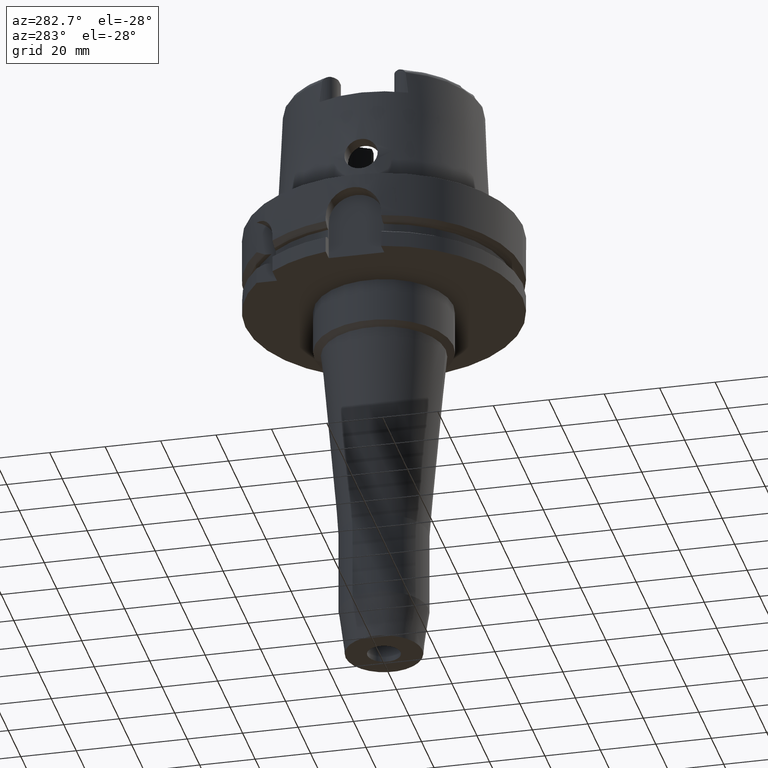
[diagram: clean part render]
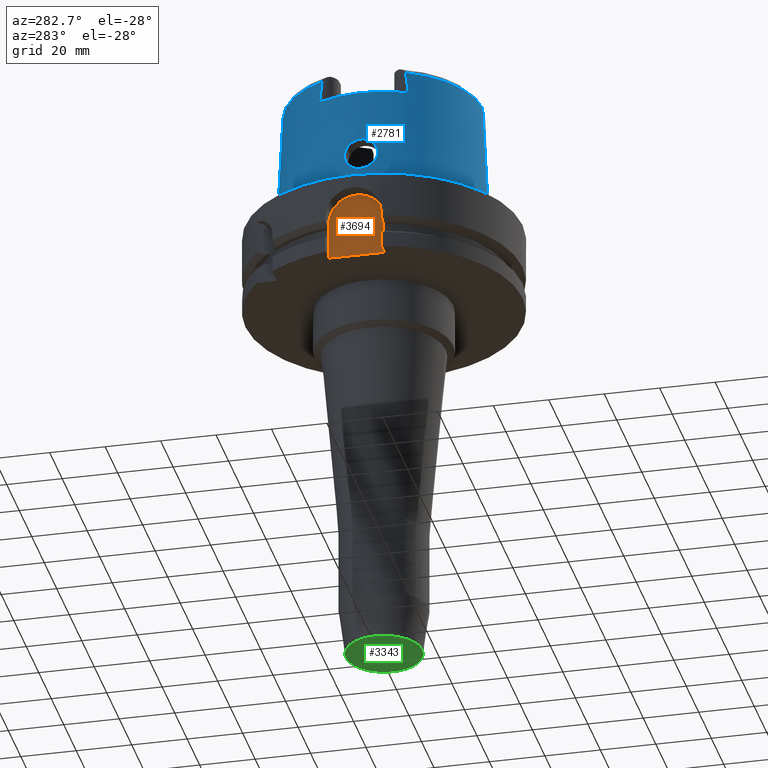
[diagram: same view with three faces highlighted in distinct colors, each labeled with its STEP entity id]
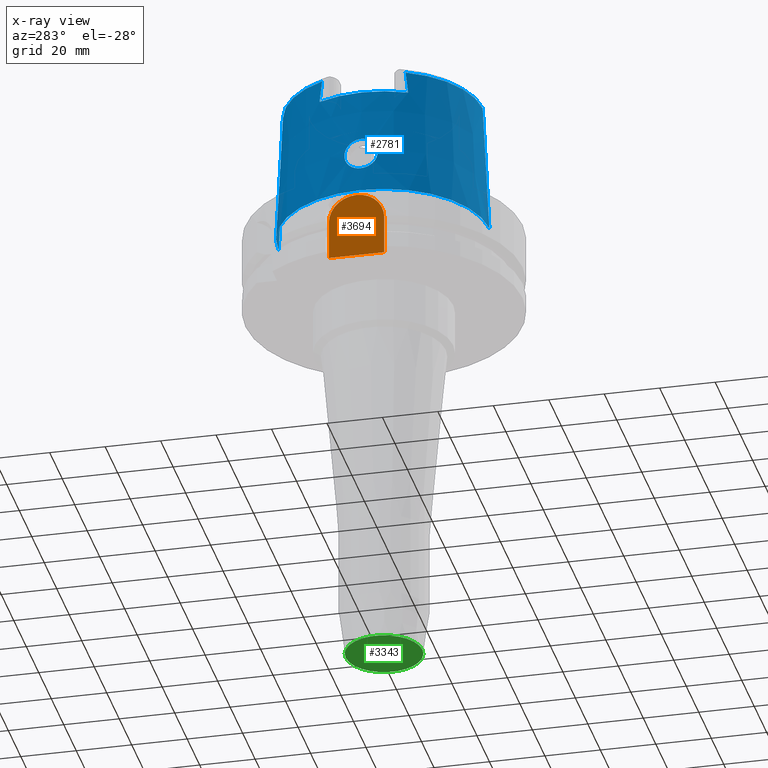
[diagram: x-ray of the same camera — body ghosted, the three highlighted faces saturated]
A machine part, auxiliary view with three faces highlighted in distinct colors.
The next image is the same camera in x-ray (body ghosted, the three faces saturated) — at least one of them is partly hidden behind the body in this view.
Their STEP definitions:

[orange] entity #3694 — the highlighted planar face has unit normal (1, 0, 0).
#1427=DIRECTION('',(0.E0,0.E0,1.E0));
#1428=VECTOR('',#1427,1.4E1);
#1429=CARTESIAN_POINT('',(-4.4E1,-1.E1,-2.9E1));
#1430=LINE('',#1429,#1428);
#1441=DIRECTION('',(0.E0,1.E0,0.E0));
#1442=VECTOR('',#1441,2.E1);
#1443=CARTESIAN_POINT('',(-4.4E1,-1.E1,-2.9E1));
#1444=LINE('',#1443,#1442);
#1448=CARTESIAN_POINT('',(-4.4E1,0.E0,-1.5E1));
#1449=DIRECTION('',(1.E0,0.E0,0.E0));
#1450=DIRECTION('',(0.E0,1.E0,0.E0));
#1451=AXIS2_PLACEMENT_3D('',#1448,#1449,#1450);
#1456=CARTESIAN_POINT('',(-4.4E1,0.E0,-1.5E1));
#1457=DIRECTION('',(1.E0,0.E0,0.E0));
#1458=DIRECTION('',(0.E0,0.E0,1.E0));
#1459=AXIS2_PLACEMENT_3D('',#1456,#1457,#1458);
#1478=DIRECTION('',(0.E0,0.E0,-1.E0));
#1479=VECTOR('',#1478,1.4E1);
#1480=CARTESIAN_POINT('',(-4.4E1,1.E1,-1.5E1));
#1481=LINE('',#1480,#1479);
#2437=CARTESIAN_POINT('',(-4.4E1,1.E1,-2.9E1));
#2438=VERTEX_POINT('',#2437);
#2439=CARTESIAN_POINT('',(-4.4E1,-1.E1,-2.9E1));
#2440=VERTEX_POINT('',#2439);
#2483=CARTESIAN_POINT('',(-4.4E1,-1.E1,-1.5E1));
#2484=VERTEX_POINT('',#2483);
#2496=CARTESIAN_POINT('',(-4.4E1,1.E1,-1.5E1));
#2497=VERTEX_POINT('',#2496);
#2498=CARTESIAN_POINT('',(-4.4E1,0.E0,-5.E0));
#2499=VERTEX_POINT('',#2498);
#3679=CARTESIAN_POINT('',(-4.4E1,0.E0,0.E0));
#3680=DIRECTION('',(1.E0,0.E0,0.E0));
#3681=DIRECTION('',(0.E0,0.E0,1.E0));
#3682=AXIS2_PLACEMENT_3D('',#3679,#3680,#3681);
#3683=PLANE('',#3682);
#3684=ORIENTED_EDGE('',*,*,#3497,.T.);
#3686=ORIENTED_EDGE('',*,*,#3685,.F.);
#3688=ORIENTED_EDGE('',*,*,#3687,.T.);
#3690=ORIENTED_EDGE('',*,*,#3689,.T.);
#3691=ORIENTED_EDGE('',*,*,#3659,.F.);
#3692=EDGE_LOOP('',(#3684,#3686,#3688,#3690,#3691));
#3693=FACE_OUTER_BOUND('',#3692,.F.);
#1452=CIRCLE('',#1451,1.E1);
#1460=CIRCLE('',#1459,1.E1);
#3497=EDGE_CURVE('',#2440,#2438,#1444,.T.);
#3659=EDGE_CURVE('',#2440,#2484,#1430,.T.);
#3685=EDGE_CURVE('',#2497,#2438,#1481,.T.);
#3687=EDGE_CURVE('',#2497,#2499,#1452,.T.);
#3689=EDGE_CURVE('',#2499,#2484,#1460,.T.);
#3694=ADVANCED_FACE('',(#3693),#3683,.F.);

[blue] entity #2781 — the highlighted conical surface has half-angle 2.862 deg.
#130=CARTESIAN_POINT('',(0.E0,0.E0,4.E1));
#131=DIRECTION('',(0.E0,0.E0,-1.E0));
#132=DIRECTION('',(-8.958345712660E-1,-4.443876921391E-1,0.E0));
#133=AXIS2_PLACEMENT_3D('',#130,#131,#132);
#221=CARTESIAN_POINT('',(-3.224999491821E1,-1.506448480698E1,4.809973263365E1));
#281=CARTESIAN_POINT('',(0.E0,0.E0,4.809987853799E1));
#282=DIRECTION('',(0.E0,0.E0,-1.E0));
#283=DIRECTION('',(0.E0,-1.E0,0.E0));
#284=AXIS2_PLACEMENT_3D('',#281,#282,#283);
#289=CARTESIAN_POINT('',(-3.224999876012E1,-1.599794043148E1,4.E1));
#290=CARTESIAN_POINT('',(-3.224999876012E1,-1.589618560063E1,4.090434232027E1));
#291=CARTESIAN_POINT('',(-3.224999990104E1,-1.569149929479E1,4.271014757182E1));
#292=CARTESIAN_POINT('',(-3.225000220619E1,-1.538028254468E1,4.541006270133E1));
#293=CARTESIAN_POINT('',(-3.224999491821E1,-1.517027181500E1,4.720433970237E1));
#294=CARTESIAN_POINT('',(-3.224999491821E1,-1.506448480698E1,4.809973263365E1));
#299=DIRECTION('',(5.154182075151E-5,-4.993927430816E-2,-9.987522546783E-1));
#300=VECTOR('',#299,4.815996991514E1);
#301=CARTESIAN_POINT('',(-2.482252536761E-3,-3.559494263425E1,
4.809987853799E1));
#302=LINE('',#301,#300);
#306=CARTESIAN_POINT('',(-3.225000136841E1,1.506443228419E1,4.809991920288E1));
#307=CARTESIAN_POINT('',(-3.225000136841E1,1.517024628803E1,4.720430023891E1));
#308=CARTESIAN_POINT('',(-3.225000007421E1,1.538032523700E1,4.541024583629E1));
#309=CARTESIAN_POINT('',(-3.224999768767E1,1.569154926884E1,4.271027466994E1));
#310=CARTESIAN_POINT('',(-3.225000534596E1,1.589614940559E1,4.090439636549E1));
#311=CARTESIAN_POINT('',(-3.225000534596E1,1.599791057085E1,4.E1));
#316=CARTESIAN_POINT('',(-3.755000165825E1,1.432651546991E-13,9.E0));
#317=CARTESIAN_POINT('',(-3.755000165825E1,-5.185560787448E-1,9.E0));
#318=CARTESIAN_POINT('',(-3.752119038131E1,-1.556716984308E0,9.135734722668E0));
#319=CARTESIAN_POINT('',(-3.740130554103E1,-3.006802699936E0,9.729109611442E0));
#320=CARTESIAN_POINT('',(-3.722726318975E1,-4.270787324592E0,1.068748216953E1));
#321=CARTESIAN_POINT('',(-3.703605345602E1,-5.245410217770E0,1.194520323917E1));
#322=CARTESIAN_POINT('',(-3.686625967759E1,-5.862506743114E0,1.342477736647E1));
#323=CARTESIAN_POINT('',(-3.675188493320E1,-6.068957740844E0,1.500492021002E1));
#324=CARTESIAN_POINT('',(-3.670699294937E1,-5.861659041703E0,1.657084310318E1));
#325=CARTESIAN_POINT('',(-3.672675900459E1,-5.257535553203E0,1.802994044463E1));
#326=CARTESIAN_POINT('',(-3.679087786361E1,-4.302010649084E0,1.928009624325E1));
#327=CARTESIAN_POINT('',(-3.687048843870E1,-3.045271169507E0,2.025039439541E1));
#328=CARTESIAN_POINT('',(-3.693403423248E1,-1.575202321741E0,2.086150979571E1));
#329=CARTESIAN_POINT('',(-3.694998175923E1,-5.250091625421E-1,2.1E1));
#330=CARTESIAN_POINT('',(-3.694998175923E1,0.E0,2.1E1));
#335=CARTESIAN_POINT('',(-3.694998175923E1,0.E0,2.1E1));
#336=CARTESIAN_POINT('',(-3.694998175923E1,5.232795194722E-1,2.1E1));
#337=CARTESIAN_POINT('',(-3.693412453033E1,1.570860915323E0,2.086225710790E1));
#338=CARTESIAN_POINT('',(-3.687089197851E1,3.037978777085E0,2.025451179145E1));
#339=CARTESIAN_POINT('',(-3.679106406143E1,4.299509589130E0,1.928373303360E1));
#340=CARTESIAN_POINT('',(-3.672648539176E1,5.261375400341E0,1.802478386036E1));
#341=CARTESIAN_POINT('',(-3.670709909781E1,5.863702681437E0,1.656194075938E1));
#342=CARTESIAN_POINT('',(-3.675206984369E1,6.067618997678E0,1.500575580855E1));
#343=CARTESIAN_POINT('',(-3.686472387377E1,5.865809689048E0,1.344398412859E1));
#344=CARTESIAN_POINT('',(-3.703183517814E1,5.262900383117E0,1.197739891739E1));
#345=CARTESIAN_POINT('',(-3.722263417644E1,4.298757024117E0,1.071458147681E1));
#346=CARTESIAN_POINT('',(-3.739912191669E1,3.029436577796E0,9.739991066840E0));
#347=CARTESIAN_POINT('',(-3.752122404034E1,1.560909655737E0,9.135510008534E0));
#348=CARTESIAN_POINT('',(-3.755000165825E1,5.189906359919E-1,9.E0));
#349=CARTESIAN_POINT('',(-3.755000165825E1,1.432651546991E-13,9.E0));
#364=DIRECTION('',(-5.154182075159E-5,4.993927430816E-2,-9.987522546783E-1));
#365=VECTOR('',#364,4.815996991514E1);
#366=CARTESIAN_POINT('',(2.482252536765E-3,3.559494263425E1,4.809987853799E1));
#367=LINE('',#366,#365);
#2011=CARTESIAN_POINT('',(0.E0,0.E0,1.023181539495E-12));
#2012=DIRECTION('',(0.E0,0.E0,1.E0));
#2013=DIRECTION('',(0.E0,1.E0,0.E0));
#2014=AXIS2_PLACEMENT_3D('',#2011,#2012,#2013);
#2202=CARTESIAN_POINT('',(-3.225000136841E1,1.506443228419E1,4.809991920288E1));
#2207=CARTESIAN_POINT('',(0.E0,0.E0,4.809987853799E1));
#2208=DIRECTION('',(0.E0,0.E0,-1.E0));
#2209=DIRECTION('',(-9.060276961631E-1,4.232183996300E-1,0.E0));
#2210=AXIS2_PLACEMENT_3D('',#2207,#2208,#2209);
#2295=CARTESIAN_POINT('',(-3.224999876012E1,-1.599794043148E1,4.E1));
#2296=VERTEX_POINT('',#2295);
#2297=CARTESIAN_POINT('',(-3.224999999999E1,1.599793480981E1,4.E1));
#2298=VERTEX_POINT('',#2297);
#2300=VERTEX_POINT('',#2202);
#2301=CARTESIAN_POINT('',(0.E0,3.559494289391E1,4.809987853799E1));
#2302=VERTEX_POINT('',#2301);
#2306=VERTEX_POINT('',#221);
#2309=CARTESIAN_POINT('',(1.065814103640E-14,-3.559494289391E1,
4.809987853799E1));
#2310=VERTEX_POINT('',#2309);
#2311=CARTESIAN_POINT('',(0.E0,-3.800001658252E1,6.821210263297E-13));
#2312=VERTEX_POINT('',#2311);
#2313=CARTESIAN_POINT('',(0.E0,3.800001658252E1,1.023181539495E-12));
#2314=VERTEX_POINT('',#2313);
#2315=VERTEX_POINT('',#316);
#2316=VERTEX_POINT('',#330);
#2755=CARTESIAN_POINT('',(0.E0,0.E0,2.404993926900E1));
#2756=DIRECTION('',(0.E0,0.E0,-1.E0));
#2757=DIRECTION('',(0.E0,-1.E0,0.E0));
#2758=AXIS2_PLACEMENT_3D('',#2755,#2756,#2757);
#2759=CONICAL_SURFACE('',#2758,3.679747973821E1,2.8625E0);
#2760=ORIENTED_EDGE('',*,*,#2664,.F.);
#2761=ORIENTED_EDGE('',*,*,#2747,.T.);
#2762=ORIENTED_EDGE('',*,*,#2737,.F.);
#2764=ORIENTED_EDGE('',*,*,#2763,.T.);
#2766=ORIENTED_EDGE('',*,*,#2765,.F.);
#2768=ORIENTED_EDGE('',*,*,#2767,.F.);
#2770=ORIENTED_EDGE('',*,*,#2769,.F.);
#2772=ORIENTED_EDGE('',*,*,#2771,.T.);
#2773=EDGE_LOOP('',(#2760,#2761,#2762,#2764,#2766,#2768,#2770,#2772));
#2774=FACE_OUTER_BOUND('',#2773,.F.);
#2776=ORIENTED_EDGE('',*,*,#2775,.T.);
#2778=ORIENTED_EDGE('',*,*,#2777,.T.);
#2779=EDGE_LOOP('',(#2776,#2778));
#2780=FACE_BOUND('',#2779,.F.);
#134=CIRCLE('',#133,3.599995025244E1);
#285=CIRCLE('',#284,3.559494289391E1);
#295=B_SPLINE_CURVE_WITH_KNOTS('',3,(#289,#290,#291,#292,#293,#294),
.UNSPECIFIED.,.F.,.F.,(4,1,1,4),(0.E0,3.333333333333E-1,6.666666666667E-1,1.E0),
.UNSPECIFIED.);
#312=B_SPLINE_CURVE_WITH_KNOTS('',3,(#306,#307,#308,#309,#310,#311),
.UNSPECIFIED.,.F.,.F.,(4,1,1,4),(0.E0,3.333333333333E-1,6.666666666667E-1,1.E0),
.UNSPECIFIED.);
#331=B_SPLINE_CURVE_WITH_KNOTS('',3,(#316,#317,#318,#319,#320,#321,#322,#323,
#324,#325,#326,#327,#328,#329,#330),.UNSPECIFIED.,.F.,.F.,(4,1,1,1,1,1,1,1,1,1,
1,1,4),(0.E0,8.333333333333E-2,1.666666666667E-1,2.5E-1,3.333333333333E-1,
4.166666666667E-1,5.E-1,5.833333333333E-1,6.666666666667E-1,7.5E-1,
8.333333333333E-1,9.166666666667E-1,1.E0),.UNSPECIFIED.);
#350=B_SPLINE_CURVE_WITH_KNOTS('',3,(#335,#336,#337,#338,#339,#340,#341,#342,
#343,#344,#345,#346,#347,#348,#349),.UNSPECIFIED.,.F.,.F.,(4,1,1,1,1,1,1,1,1,1,
1,1,4),(0.E0,8.333333333333E-2,1.666666666667E-1,2.5E-1,3.333333333333E-1,
4.166666666667E-1,5.E-1,5.833333333333E-1,6.666666666667E-1,7.5E-1,
8.333333333333E-1,9.166666666667E-1,1.E0),.UNSPECIFIED.);
#2015=CIRCLE('',#2014,3.800001658252E1);
#2211=CIRCLE('',#2210,3.559494289391E1);
#2664=EDGE_CURVE('',#2296,#2298,#134,.T.);
#2737=EDGE_CURVE('',#2310,#2306,#285,.T.);
#2747=EDGE_CURVE('',#2296,#2306,#295,.T.);
#2763=EDGE_CURVE('',#2310,#2312,#302,.T.);
#2765=EDGE_CURVE('',#2314,#2312,#2015,.T.);
#2767=EDGE_CURVE('',#2302,#2314,#367,.T.);
#2769=EDGE_CURVE('',#2300,#2302,#2211,.T.);
#2771=EDGE_CURVE('',#2300,#2298,#312,.T.);
#2775=EDGE_CURVE('',#2315,#2316,#331,.T.);
#2777=EDGE_CURVE('',#2316,#2315,#350,.T.);
#2781=ADVANCED_FACE('',(#2774,#2780),#2759,.T.);

[green] entity #3343 — the highlighted planar face has unit normal (0, 0, 1).
#1059=CARTESIAN_POINT('',(0.E0,0.E0,-1.65E2));
#1060=DIRECTION('',(0.E0,0.E0,1.E0));
#1061=DIRECTION('',(0.E0,-1.E0,0.E0));
#1062=AXIS2_PLACEMENT_3D('',#1059,#1060,#1061);
#1067=CARTESIAN_POINT('',(0.E0,0.E0,-1.65E2));
#1068=DIRECTION('',(0.E0,0.E0,1.E0));
#1069=DIRECTION('',(0.E0,1.E0,0.E0));
#1070=AXIS2_PLACEMENT_3D('',#1067,#1068,#1069);
#1075=CARTESIAN_POINT('',(0.E0,0.E0,-1.65E2));
#1076=DIRECTION('',(0.E0,0.E0,-1.E0));
#1077=DIRECTION('',(0.E0,-1.E0,0.E0));
#1078=AXIS2_PLACEMENT_3D('',#1075,#1076,#1077);
#1083=CARTESIAN_POINT('',(0.E0,0.E0,-1.65E2));
#1084=DIRECTION('',(0.E0,0.E0,-1.E0));
#1085=DIRECTION('',(0.E0,1.E0,0.E0));
#1086=AXIS2_PLACEMENT_3D('',#1083,#1084,#1085);
#2401=CARTESIAN_POINT('',(0.E0,6.E0,-1.65E2));
#2402=VERTEX_POINT('',#2401);
#2403=CARTESIAN_POINT('',(0.E0,-6.E0,-1.65E2));
#2404=VERTEX_POINT('',#2403);
#2405=CARTESIAN_POINT('',(0.E0,-1.38455E1,-1.65E2));
#2406=CARTESIAN_POINT('',(0.E0,1.38455E1,-1.65E2));
#2407=VERTEX_POINT('',#2405);
#2408=VERTEX_POINT('',#2406);
#3328=CARTESIAN_POINT('',(0.E0,0.E0,-1.65E2));
#3329=DIRECTION('',(0.E0,0.E0,1.E0));
#3330=DIRECTION('',(0.E0,1.E0,0.E0));
#3331=AXIS2_PLACEMENT_3D('',#3328,#3329,#3330);
#3332=PLANE('',#3331);
#3334=ORIENTED_EDGE('',*,*,#3333,.T.);
#3336=ORIENTED_EDGE('',*,*,#3335,.T.);
#3337=EDGE_LOOP('',(#3334,#3336));
#3338=FACE_OUTER_BOUND('',#3337,.F.);
#3339=ORIENTED_EDGE('',*,*,#3321,.T.);
#3340=ORIENTED_EDGE('',*,*,#3310,.T.);
#3341=EDGE_LOOP('',(#3339,#3340));
#3342=FACE_BOUND('',#3341,.F.);
#1063=CIRCLE('',#1062,1.38455E1);
#1071=CIRCLE('',#1070,1.38455E1);
#1079=CIRCLE('',#1078,6.E0);
#1087=CIRCLE('',#1086,6.E0);
#3310=EDGE_CURVE('',#2402,#2404,#1087,.T.);
#3321=EDGE_CURVE('',#2404,#2402,#1079,.T.);
#3333=EDGE_CURVE('',#2407,#2408,#1063,.T.);
#3335=EDGE_CURVE('',#2408,#2407,#1071,.T.);
#3343=ADVANCED_FACE('',(#3338,#3342),#3332,.F.);